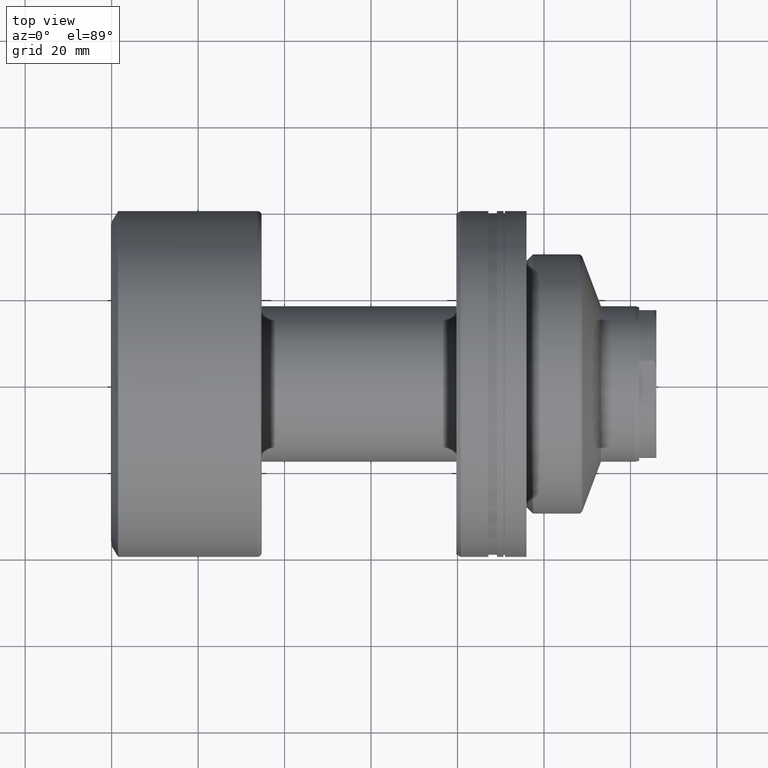
[diagram: clean part render]
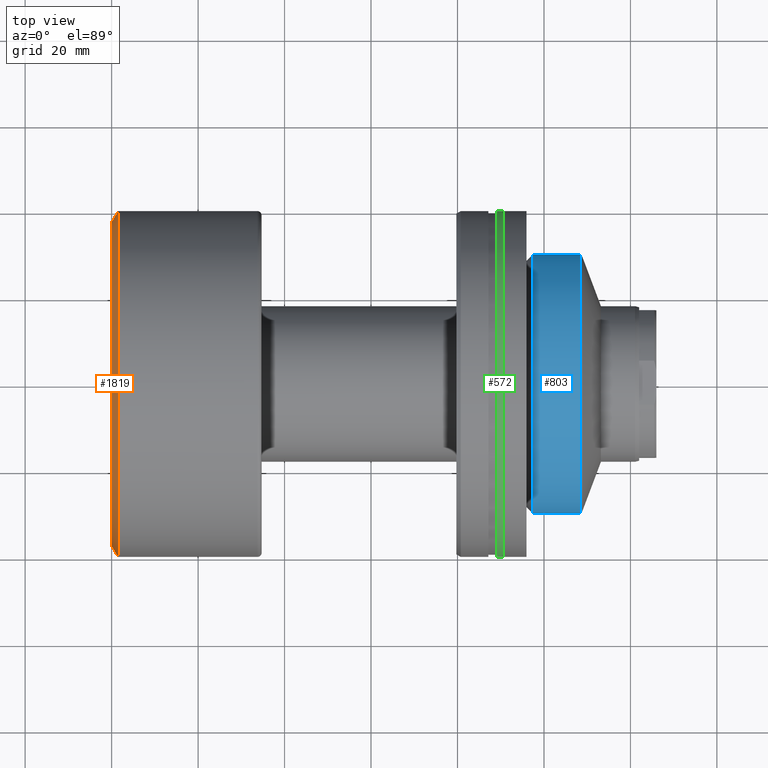
[diagram: same view with three faces highlighted in distinct colors, each labeled with its STEP entity id]
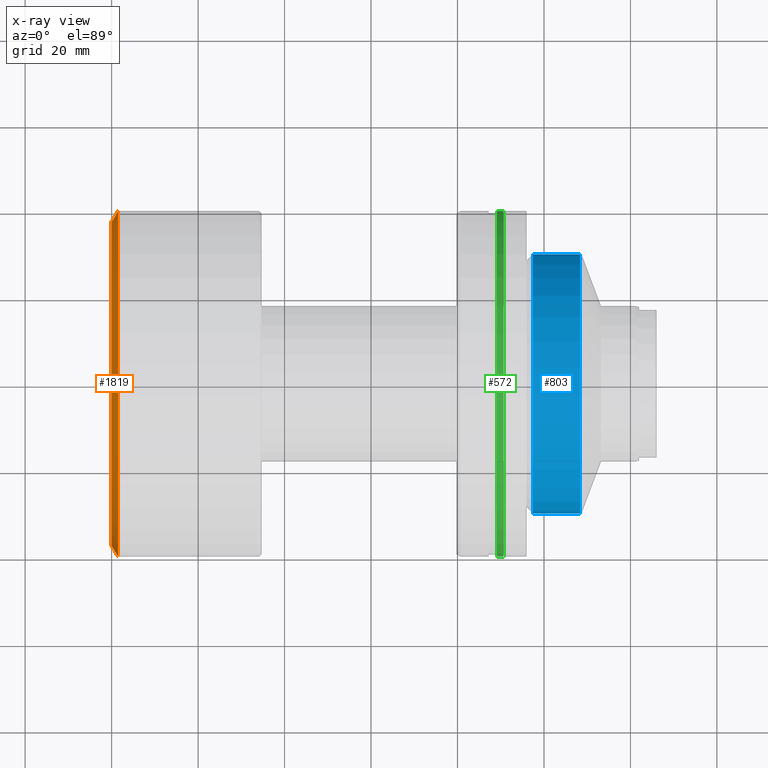
[diagram: x-ray of the same camera — body ghosted, the three highlighted faces saturated]
A machine part, top view with three faces highlighted in distinct colors.
The next image is the same camera in x-ray (body ghosted, the three faces saturated) — at least one of them is partly hidden behind the body in this view.
Their STEP definitions:

[orange] entity #1819 — the highlighted conical surface has half-angle 59.036 deg.
#3 = CARTESIAN_POINT ( 'NONE',  ( 4.191347126026673560E-15, 4.482823137768074044E-32, 0.000000000000000000 ) ) ;
#13 = FACE_OUTER_BOUND ( 'NONE', #383, .T. ) ;
#205 = DIRECTION ( 'NONE',  ( -1.069542322069066725E-17, 1.000000000000000000, 0.000000000000000000 ) ) ;
#327 = DIRECTION ( 'NONE',  ( 0.5144957554275262357, 0.8574929257125444293, 0.000000000000000000 ) ) ;
#383 = EDGE_LOOP ( 'NONE', ( #1484, #2192, #1490, #1844 ) ) ;
#385 = CARTESIAN_POINT ( 'NONE',  ( 1.500000000000004663, 1.604313483103603400E-17, 0.000000000000000000 ) ) ;
#440 = VERTEX_POINT ( 'NONE', #469 ) ;
#469 = CARTESIAN_POINT ( 'NONE',  ( 1.500000000000004219, 39.99999999999999289, 0.000000000000000000 ) ) ;
#505 = CARTESIAN_POINT ( 'NONE',  ( 3.790268755250773542E-15, 37.49999999999999289, 0.000000000000000000 ) ) ;
#529 = VERTEX_POINT ( 'NONE', #917 ) ;
#538 = CARTESIAN_POINT ( 'NONE',  ( 4.191347126026673560E-15, 4.482823137768074044E-32, 0.000000000000000000 ) ) ;
#545 = DIRECTION ( 'NONE',  ( -1.000000000000000000, -1.069542322069065801E-17, -0.000000000000000000 ) ) ;
#606 = LINE ( 'NONE', #2099, #1524 ) ;
#662 = EDGE_CURVE ( 'NONE', #1052, #1847, #606, .T. ) ;
#800 = CIRCLE ( 'NONE', #1384, 37.49999999999999289 ) ;
#917 = CARTESIAN_POINT ( 'NONE',  ( 3.790268755250773542E-15, 37.49999999999999289, 0.000000000000000000 ) ) ;
#1036 = AXIS2_PLACEMENT_3D ( 'NONE', #385, #545, #1107 ) ;
#1052 = VERTEX_POINT ( 'NONE', #1893 ) ;
#1107 = DIRECTION ( 'NONE',  ( 1.084202172485504588E-17, -1.000000000000000000, 0.000000000000000000 ) ) ;
#1194 = DIRECTION ( 'NONE',  ( -1.000000000000000000, -1.069542322069065801E-17, -0.000000000000000000 ) ) ;
#1222 = VECTOR ( 'NONE', #327, 999.9999999999998863 ) ;
#1344 = DIRECTION ( 'NONE',  ( 0.5144957554275262357, -0.8574929257125444293, 1.050125966765366654E-16 ) ) ;
#1384 = AXIS2_PLACEMENT_3D ( 'NONE', #3, #1194, #1407 ) ;
#1407 = DIRECTION ( 'NONE',  ( 1.069542322069066725E-17, -1.000000000000000000, 0.000000000000000000 ) ) ;
#1446 = LINE ( 'NONE', #505, #1222 ) ;
#1455 = CARTESIAN_POINT ( 'NONE',  ( 1.500000000000005107, -39.99999999999999289, 4.898587196589412237E-15 ) ) ;
#1484 = ORIENTED_EDGE ( 'NONE', *, *, #1807, .F. ) ;
#1490 = ORIENTED_EDGE ( 'NONE', *, *, #1680, .T. ) ;
#1524 = VECTOR ( 'NONE', #1344, 999.9999999999998863 ) ;
#1680 = EDGE_CURVE ( 'NONE', #1847, #440, #1838, .T. ) ;
#1701 = EDGE_CURVE ( 'NONE', #529, #440, #1446, .T. ) ;
#1807 = EDGE_CURVE ( 'NONE', #1052, #529, #800, .T. ) ;
#1819 = ADVANCED_FACE ( 'NONE', ( #13 ), #1873, .T. ) ;
#1838 = CIRCLE ( 'NONE', #1036, 39.99999999999999289 ) ;
#1844 = ORIENTED_EDGE ( 'NONE', *, *, #1701, .F. ) ;
#1847 = VERTEX_POINT ( 'NONE', #1455 ) ;
#1873 = CONICAL_SURFACE ( 'NONE', #1908, 37.49999999999999289, 1.030376826524312728 ) ;
#1893 = CARTESIAN_POINT ( 'NONE',  ( 4.592425496802573578E-15, -37.49999999999999289, 4.745506346695992513E-15 ) ) ;
#1908 = AXIS2_PLACEMENT_3D ( 'NONE', #538, #2186, #205 ) ;
#2099 = CARTESIAN_POINT ( 'NONE',  ( 4.592425496802573578E-15, -37.49999999999999289, 4.592425496802573578E-15 ) ) ;
#2186 = DIRECTION ( 'NONE',  ( 1.000000000000000000, 1.069542322069065801E-17, 0.000000000000000000 ) ) ;
#2192 = ORIENTED_EDGE ( 'NONE', *, *, #662, .T. ) ;

[blue] entity #803 — the highlighted cylindrical surface (partial cylindrical patch) has radius 30 mm, axis along (1, 0, 0).
#84 = CARTESIAN_POINT ( 'NONE',  ( -11.60000000000070663, 6.982867073798878356E-15, 0.000000000000000000 ) ) ;
#150 = DIRECTION ( 'NONE',  ( 1.000000000000000000, 3.738146982434194072E-16, -0.000000000000000000 ) ) ;
#154 = CARTESIAN_POINT ( 'NONE',  ( -22.50000000000068567, -30.00000000000000000, 3.673940397442059967E-15 ) ) ;
#184 = VERTEX_POINT ( 'NONE', #154 ) ;
#240 = VERTEX_POINT ( 'NONE', #898 ) ;
#276 = CIRCLE ( 'NONE', #2301, 30.00000000000000711 ) ;
#378 = ORIENTED_EDGE ( 'NONE', *, *, #1400, .T. ) ;
#427 = VECTOR ( 'NONE', #150, 1000.000000000000000 ) ;
#459 = DIRECTION ( 'NONE',  ( -3.469446951953613203E-16, 1.000000000000000000, 0.000000000000000000 ) ) ;
#648 = CIRCLE ( 'NONE', #799, 30.00000000000000355 ) ;
#673 = LINE ( 'NONE', #1055, #427 ) ;
#799 = AXIS2_PLACEMENT_3D ( 'NONE', #1360, #2079, #1903 ) ;
#801 = FACE_OUTER_BOUND ( 'NONE', #1878, .T. ) ;
#803 = ADVANCED_FACE ( 'NONE', ( #801 ), #2077, .T. ) ;
#814 = CARTESIAN_POINT ( 'NONE',  ( -30.28002276692732408, 0.000000000000000000, 0.000000000000000000 ) ) ;
#898 = CARTESIAN_POINT ( 'NONE',  ( -11.60000000000069598, -30.00000000000000000, 3.673940397442059967E-15 ) ) ;
#1047 = EDGE_CURVE ( 'NONE', #1871, #240, #276, .T. ) ;
#1055 = CARTESIAN_POINT ( 'NONE',  ( -30.28002276692731343, -30.00000000000000711, 3.673940397442059967E-15 ) ) ;
#1110 = VERTEX_POINT ( 'NONE', #2129 ) ;
#1184 = AXIS2_PLACEMENT_3D ( 'NONE', #814, #1369, #459 ) ;
#1263 = LINE ( 'NONE', #2153, #1418 ) ;
#1360 = CARTESIAN_POINT ( 'NONE',  ( -22.50000000000069633, 2.908286862945609721E-15, 0.000000000000000000 ) ) ;
#1369 = DIRECTION ( 'NONE',  ( 1.000000000000000000, 3.738146982434194072E-16, -0.000000000000000000 ) ) ;
#1400 = EDGE_CURVE ( 'NONE', #1110, #184, #648, .T. ) ;
#1418 = VECTOR ( 'NONE', #2137, 1000.000000000000000 ) ;
#1440 = EDGE_CURVE ( 'NONE', #1110, #1871, #1263, .T. ) ;
#1545 = DIRECTION ( 'NONE',  ( -3.469446951953613203E-16, 1.000000000000000000, 0.000000000000000000 ) ) ;
#1788 = EDGE_CURVE ( 'NONE', #184, #240, #673, .T. ) ;
#1841 = CARTESIAN_POINT ( 'NONE',  ( -11.60000000000071729, 30.00000000000001421, 0.000000000000000000 ) ) ;
#1871 = VERTEX_POINT ( 'NONE', #1841 ) ;
#1878 = EDGE_LOOP ( 'NONE', ( #378, #2054, #2254, #1994 ) ) ;
#1903 = DIRECTION ( 'NONE',  ( -3.469446951953613696E-16, 1.000000000000000000, 0.000000000000000000 ) ) ;
#1994 = ORIENTED_EDGE ( 'NONE', *, *, #1440, .F. ) ;
#2054 = ORIENTED_EDGE ( 'NONE', *, *, #1788, .T. ) ;
#2077 = CYLINDRICAL_SURFACE ( 'NONE', #1184, 30.00000000000000711 ) ;
#2079 = DIRECTION ( 'NONE',  ( 1.000000000000000000, 3.738146982434194072E-16, -0.000000000000000000 ) ) ;
#2129 = CARTESIAN_POINT ( 'NONE',  ( -22.50000000000070699, 30.00000000000000711, 0.000000000000000000 ) ) ;
#2137 = DIRECTION ( 'NONE',  ( 1.000000000000000000, 3.738146982434194072E-16, -0.000000000000000000 ) ) ;
#2153 = CARTESIAN_POINT ( 'NONE',  ( -30.28002276692733474, 30.00000000000000711, 0.000000000000000000 ) ) ;
#2254 = ORIENTED_EDGE ( 'NONE', *, *, #1047, .F. ) ;
#2256 = DIRECTION ( 'NONE',  ( 1.000000000000000000, 3.738146982434194072E-16, -0.000000000000000000 ) ) ;
#2301 = AXIS2_PLACEMENT_3D ( 'NONE', #84, #2256, #1545 ) ;

[green] entity #572 — the highlighted cylindrical surface (partial cylindrical patch) has radius 40 mm, axis along (1, 0, 0).
#98 = ORIENTED_EDGE ( 'NONE', *, *, #1576, .T. ) ;
#99 = DIRECTION ( 'NONE',  ( -3.469446951953613696E-16, 1.000000000000000000, 0.000000000000000000 ) ) ;
#112 = FACE_OUTER_BOUND ( 'NONE', #413, .T. ) ;
#118 = DIRECTION ( 'NONE',  ( 1.000000000000000000, 3.738146982434194072E-16, -0.000000000000000000 ) ) ;
#134 = VECTOR ( 'NONE', #1745, 1000.000000000000000 ) ;
#139 = DIRECTION ( 'NONE',  ( 1.000000000000000000, 3.738146982434194072E-16, -0.000000000000000000 ) ) ;
#165 = VECTOR ( 'NONE', #2011, 1000.000000000000000 ) ;
#282 = CARTESIAN_POINT ( 'NONE',  ( -29.30000000000002203, 40.00000000000000711, 0.000000000000000000 ) ) ;
#352 = EDGE_CURVE ( 'NONE', #1602, #699, #977, .T. ) ;
#413 = EDGE_LOOP ( 'NONE', ( #1973, #98, #1632, #546 ) ) ;
#546 = ORIENTED_EDGE ( 'NONE', *, *, #789, .F. ) ;
#554 = AXIS2_PLACEMENT_3D ( 'NONE', #1763, #139, #1911 ) ;
#572 = ADVANCED_FACE ( 'NONE', ( #112 ), #633, .T. ) ;
#633 = CYLINDRICAL_SURFACE ( 'NONE', #554, 40.00000000000000711 ) ;
#699 = VERTEX_POINT ( 'NONE', #1935 ) ;
#789 = EDGE_CURVE ( 'NONE', #1602, #1413, #926, .T. ) ;
#848 = LINE ( 'NONE', #2286, #134 ) ;
#912 = CARTESIAN_POINT ( 'NONE',  ( -29.29999999999999361, -40.00000000000000711, 4.898587196589413815E-15 ) ) ;
#926 = LINE ( 'NONE', #2182, #165 ) ;
#977 = CIRCLE ( 'NONE', #1737, 40.00000000000000711 ) ;
#1084 = CARTESIAN_POINT ( 'NONE',  ( -30.80000000000002913, 40.00000000000000711, 0.000000000000000000 ) ) ;
#1174 = DIRECTION ( 'NONE',  ( 1.000000000000000000, 3.738146982434194072E-16, -0.000000000000000000 ) ) ;
#1211 = DIRECTION ( 'NONE',  ( -3.469446951953613696E-16, 1.000000000000000000, 0.000000000000000000 ) ) ;
#1311 = CARTESIAN_POINT ( 'NONE',  ( -30.80000000000001492, -1.943751324745165179E-16, 0.000000000000000000 ) ) ;
#1413 = VERTEX_POINT ( 'NONE', #282 ) ;
#1576 = EDGE_CURVE ( 'NONE', #699, #1657, #848, .T. ) ;
#1578 = AXIS2_PLACEMENT_3D ( 'NONE', #1929, #118, #1211 ) ;
#1602 = VERTEX_POINT ( 'NONE', #1084 ) ;
#1632 = ORIENTED_EDGE ( 'NONE', *, *, #2087, .F. ) ;
#1657 = VERTEX_POINT ( 'NONE', #912 ) ;
#1737 = AXIS2_PLACEMENT_3D ( 'NONE', #1311, #1174, #99 ) ;
#1745 = DIRECTION ( 'NONE',  ( 1.000000000000000000, 3.738146982434194072E-16, -0.000000000000000000 ) ) ;
#1763 = CARTESIAN_POINT ( 'NONE',  ( -30.28002276692732408, 0.000000000000000000, 0.000000000000000000 ) ) ;
#1911 = DIRECTION ( 'NONE',  ( -3.469446951953613696E-16, 1.000000000000000000, 0.000000000000000000 ) ) ;
#1929 = CARTESIAN_POINT ( 'NONE',  ( -29.30000000000000782, 3.663469148906156498E-16, 0.000000000000000000 ) ) ;
#1935 = CARTESIAN_POINT ( 'NONE',  ( -30.80000000000000071, -40.00000000000000711, 4.898587196589413815E-15 ) ) ;
#1973 = ORIENTED_EDGE ( 'NONE', *, *, #352, .T. ) ;
#2011 = DIRECTION ( 'NONE',  ( 1.000000000000000000, 3.738146982434194072E-16, -0.000000000000000000 ) ) ;
#2087 = EDGE_CURVE ( 'NONE', #1413, #1657, #2273, .T. ) ;
#2182 = CARTESIAN_POINT ( 'NONE',  ( -30.28002276692733830, 40.00000000000000711, 0.000000000000000000 ) ) ;
#2273 = CIRCLE ( 'NONE', #1578, 40.00000000000000711 ) ;
#2286 = CARTESIAN_POINT ( 'NONE',  ( -30.28002276692730987, -40.00000000000000711, 4.898587196589413815E-15 ) ) ;